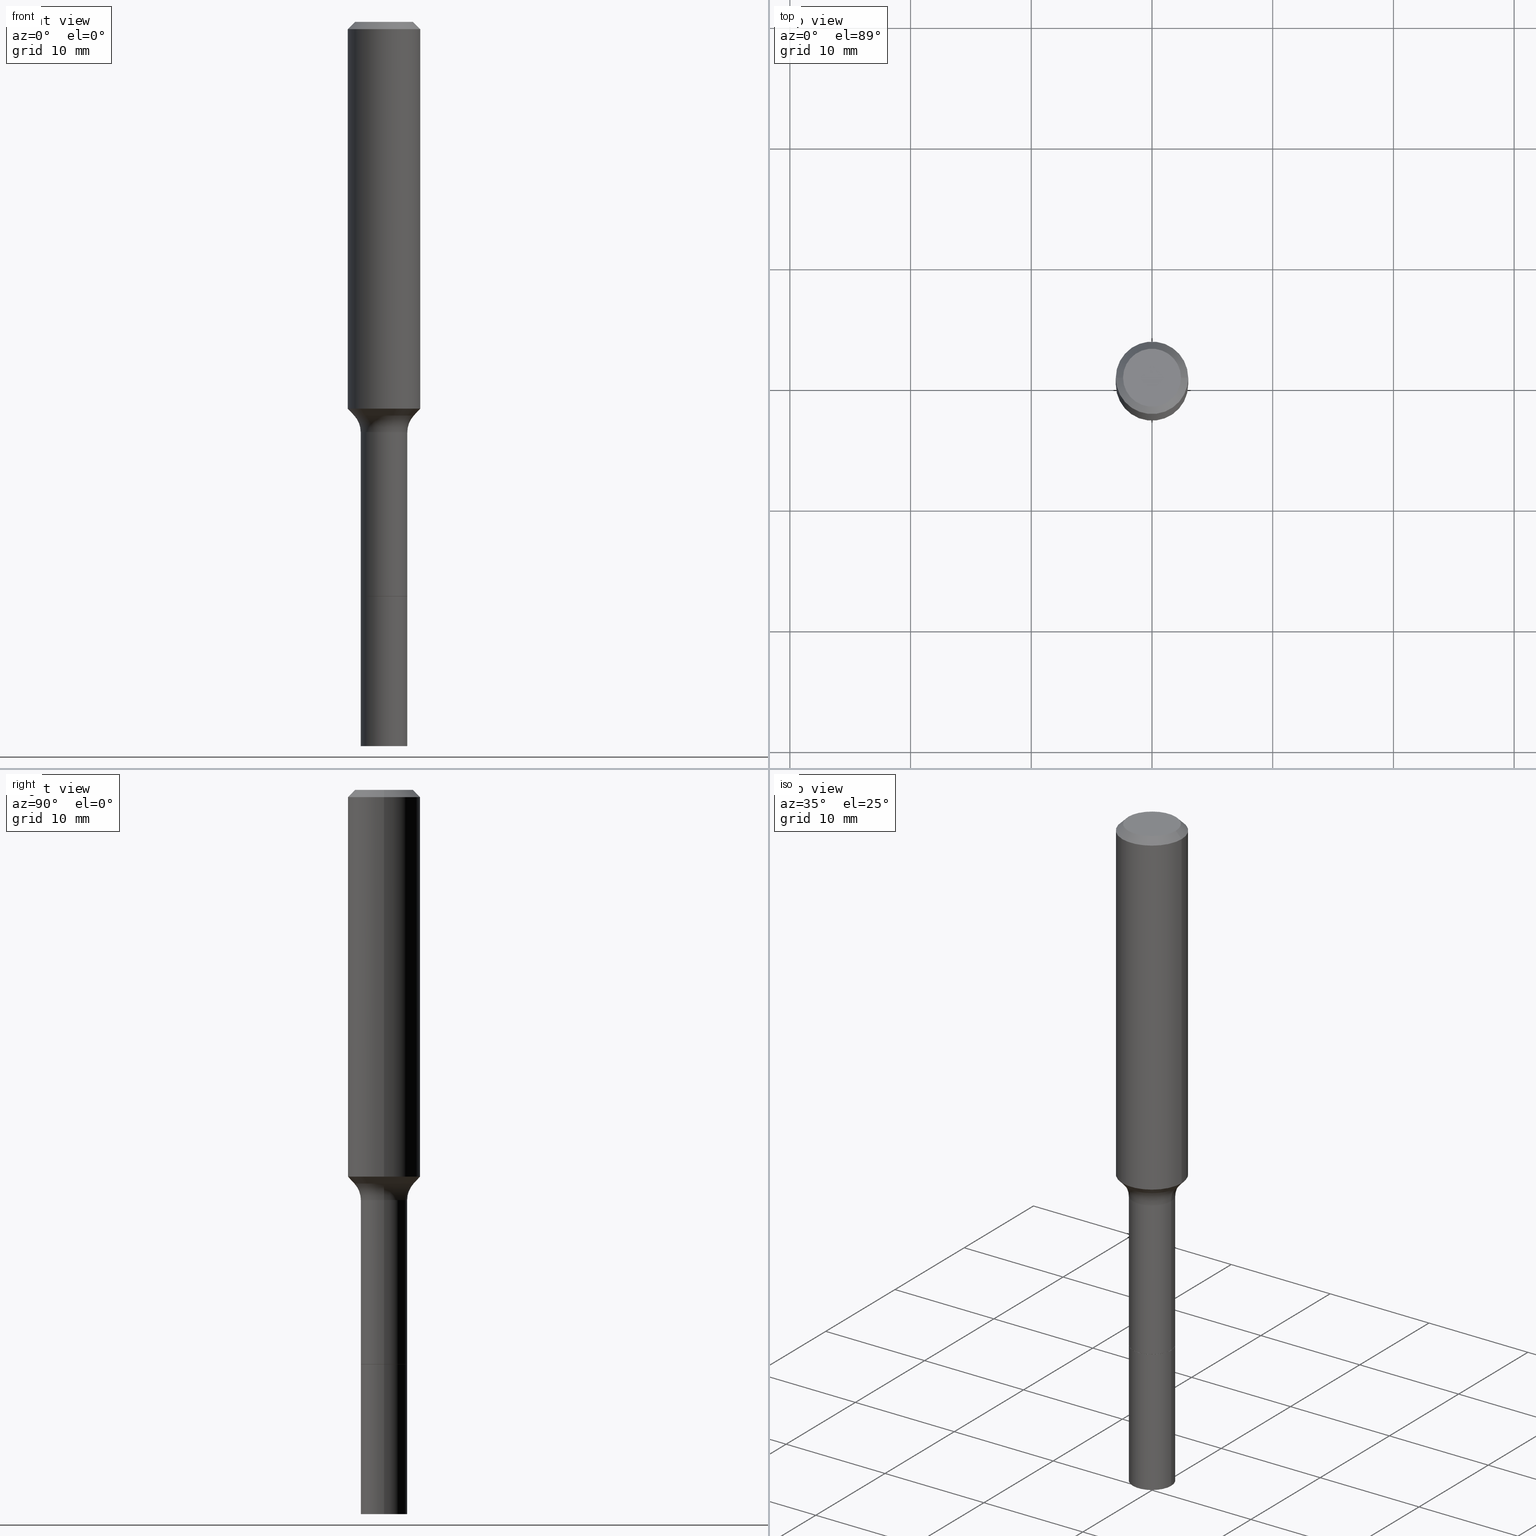
[diagram: canonical four-view strip — front | top / right | iso, engineering-drawing reading convention]
A machine part, canonical four-view strip (front | top / right | iso — engineering-drawing reading convention). The complete STEP part file that produces these views, byte-faithful:
ISO-10303-21;
HEADER;
FILE_DESCRIPTION (( 'STEP AP203' ),
    '1' );
FILE_NAME ('58806.STEP',
    '2025-04-01T15:25:00',
    ( '' ),
    ( '' ),
    'SwSTEP 2.0',
    'SolidWorks 2024',
    '' );
FILE_SCHEMA (( 'CONFIG_CONTROL_DESIGN' ));
ENDSEC;

DATA;
#1 = ADVANCED_FACE ( 'NONE', ( #71 ), #21, .T. ) ;
#2 = APPROVAL ( #70, 'UNSPECIFIED' ) ;
#3 = VERTEX_POINT ( 'NONE', #344 ) ;
#4 = AXIS2_PLACEMENT_3D ( 'NONE', #436, #317, #284 ) ;
#5 = DIRECTION ( 'NONE',  ( -2.445468806185136597E-29, 3.491481338843145583E-15, 1.000000000000000000 ) ) ;
#6 = AXIS2_PLACEMENT_3D ( 'NONE', #375, #138, #493 ) ;
#7 = EDGE_LOOP ( 'NONE', ( #22, #38, #384, #383 ) ) ;
#8 = CARTESIAN_POINT ( 'NONE',  ( 0.1180999999999999966, -8.926936027602933910E-16, -0.02362000000000014435 ) ) ;
#9 = DIRECTION ( 'NONE',  ( 1.000000000000000000, -6.982962677686267499E-15, 4.875432709231658792E-29 ) ) ;
#10 = DIRECTION ( 'NONE',  ( 0.6819983600625006970, -2.208861293262497891E-15, 0.7313537016191684614 ) ) ;
#11 = MECHANICAL_CONTEXT ( 'NONE', #82, 'mechanical' ) ;
#12 = DIRECTION ( 'NONE',  ( 1.000000000000000000, -6.982962677686267499E-15, 0.000000000000000000 ) ) ;
#13 = PERSON_AND_ORGANIZATION_ROLE ( 'design_owner' ) ;
#14 = TOROIDAL_SURFACE ( 'NONE', #440, 0.1559999999999999165, 0.07999999999999993228 ) ;
#15 = EDGE_CURVE ( 'NONE', #494, #253, #190, .T. ) ;
#16 = AXIS2_PLACEMENT_3D ( 'NONE', #495, #244, #62 ) ;
#17 = LINE ( 'NONE', #91, #300 ) ;
#18 = LINE ( 'NONE', #339, #319 ) ;
#19 = DIRECTION ( 'NONE',  ( -2.445468806185136597E-29, 3.491481338843145583E-15, 1.000000000000000000 ) ) ;
#20 = APPROVAL_ROLE ( '' ) ;
#21 = PLANE ( 'NONE',  #155 ) ;
#22 = ORIENTED_EDGE ( 'NONE', *, *, #370, .T. ) ;
#23 = CYLINDRICAL_SURFACE ( 'NONE', #104, 0.1181000000000000660 ) ;
#24 = PERSON_AND_ORGANIZATION ( #514, #501 ) ;
#25 = EDGE_LOOP ( 'NONE', ( #111, #145 ) ) ;
#26 = AXIS2_PLACEMENT_3D ( 'NONE', #296, #5, #490 ) ;
#27 = EDGE_LOOP ( 'NONE', ( #310, #109, #201, #264 ) ) ;
#28 = DIRECTION ( 'NONE',  ( -2.445468806185136597E-29, 3.491481338843145583E-15, 1.000000000000000000 ) ) ;
#29 = PERSON_AND_ORGANIZATION_ROLE ( 'design_supplier' ) ;
#30 = ORIENTED_EDGE ( 'NONE', *, *, #403, .F. ) ;
#31 = LOCAL_TIME ( 11, 25, 0.000000000000000000, #469 ) ;
#32 = EDGE_LOOP ( 'NONE', ( #402, #500, #226, #433 ) ) ;
#33 = CALENDAR_DATE ( 2025, 1, 4 ) ;
#34 = VERTEX_POINT ( 'NONE', #463 ) ;
#35 = AXIS2_PLACEMENT_3D ( 'NONE', #479, #157, #315 ) ;
#36 = DIRECTION ( 'NONE',  ( 2.445468806185136597E-29, -3.491481338843145583E-15, -1.000000000000000000 ) ) ;
#37 =( GEOMETRIC_REPRESENTATION_CONTEXT ( 3 ) GLOBAL_UNCERTAINTY_ASSIGNED_CONTEXT ( ( #146 ) ) GLOBAL_UNIT_ASSIGNED_CONTEXT ( ( #212, #372, #207 ) ) REPRESENTATION_CONTEXT ( 'NONE', 'WORKASPACE' ) );
#38 = ORIENTED_EDGE ( 'NONE', *, *, #455, .T. ) ;
#39 = FACE_OUTER_BOUND ( 'NONE', #337, .T. ) ;
#40 = CYLINDRICAL_SURFACE ( 'NONE', #60, 0.07600000000000006750 ) ;
#41 = AXIS2_PLACEMENT_3D ( 'NONE', #280, #83, #196 ) ;
#42 = CARTESIAN_POINT ( 'NONE',  ( -0.07600000000000016465, -6.855643292759872188E-15, -2.362200000000000077 ) ) ;
#43 = APPROVAL_PERSON_ORGANIZATION ( #24, #256, #110 ) ;
#44 = DESIGN_CONTEXT ( 'detailed design', #287, 'design' ) ;
#45 = CYLINDRICAL_SURFACE ( 'NONE', #101, 0.1181000000000000660 ) ;
#46 = CC_DESIGN_DATE_AND_TIME_ASSIGNMENT ( #219, #228, ( #250 ) ) ;
#47 = DIRECTION ( 'NONE',  ( -2.438088387897960049E-29, 3.491481338843145188E-15, 1.000000000000000000 ) ) ;
#48 = VERTEX_POINT ( 'NONE', #231 ) ;
#49 = AXIS2_PLACEMENT_3D ( 'NONE', #363, #85, #477 ) ;
#50 = DIRECTION ( 'NONE',  ( -2.445468806185136597E-29, 3.491481338843145583E-15, 1.000000000000000000 ) ) ;
#51 = LOCAL_TIME ( 11, 25, 0.000000000000000000, #491 ) ;
#52 = ORIENTED_EDGE ( 'NONE', *, *, #295, .T. ) ;
#53 = CARTESIAN_POINT ( 'NONE',  ( 0.000000000000000000, 0.000000000000000000, 0.000000000000000000 ) ) ;
#54 = EDGE_LOOP ( 'NONE', ( #312, #461 ) ) ;
#55 = EDGE_CURVE ( 'NONE', #181, #220, #476, .T. ) ;
#56 = DIRECTION ( 'NONE',  ( 1.000000000000000000, -6.982962677686267499E-15, 0.000000000000000000 ) ) ;
#57 = LINE ( 'NONE', #453, #158 ) ;
#58 = DIRECTION ( 'NONE',  ( 1.000000000000000000, -6.982962677686261189E-15, 0.000000000000000000 ) ) ;
#59 = DIRECTION ( 'NONE',  ( -2.445468806185136597E-29, 3.491481338843145583E-15, 1.000000000000000000 ) ) ;
#60 = AXIS2_PLACEMENT_3D ( 'NONE', #513, #360, #156 ) ;
#61 = AXIS2_PLACEMENT_3D ( 'NONE', #211, #288, #374 ) ;
#62 = DIRECTION ( 'NONE',  ( 1.000000000000000000, -6.982962677686266711E-15, 0.000000000000000000 ) ) ;
#63 = EDGE_CURVE ( 'NONE', #253, #229, #447, .T. ) ;
#64 = DIRECTION ( 'NONE',  ( -2.445468806185136597E-29, 3.491481338843145583E-15, 1.000000000000000000 ) ) ;
#65 = ADVANCED_FACE ( 'NONE', ( #39 ), #40, .T. ) ;
#66 = ORIENTED_EDGE ( 'NONE', *, *, #322, .F. ) ;
#67 = ORIENTED_EDGE ( 'NONE', *, *, #430, .F. ) ;
#68 = DIRECTION ( 'NONE',  ( 1.000000000000000000, -6.982962677686266711E-15, 0.000000000000000000 ) ) ;
#69 = AXIS2_PLACEMENT_3D ( 'NONE', #80, #321, #120 ) ;
#70 = APPROVAL_STATUS ( 'not_yet_approved' ) ;
#71 = FACE_OUTER_BOUND ( 'NONE', #340, .T. ) ;
#72 = CC_DESIGN_SECURITY_CLASSIFICATION ( #250, ( #349 ) ) ;
#73 = ORIENTED_EDGE ( 'NONE', *, *, #420, .F. ) ;
#74 = CIRCLE ( 'NONE', #141, 0.1181000000000001493 ) ;
#75 = CARTESIAN_POINT ( 'NONE',  ( 5.776686413970529753E-29, -8.247577218615279626E-15, -2.362200000000000077 ) ) ;
#76 = EDGE_LOOP ( 'NONE', ( #132, #423, #432, #106 ) ) ;
#77 = AXIS2_PLACEMENT_3D ( 'NONE', #204, #50, #410 ) ;
#78 = FACE_OUTER_BOUND ( 'NONE', #307, .T. ) ;
#79 = VECTOR ( 'NONE', #105, 39.37007874015748143 ) ;
#80 = CARTESIAN_POINT ( 'NONE',  ( 5.776197320209328408E-31, -8.246878922347560526E-17, -0.02362000000000014435 ) ) ;
#81 = ORIENTED_EDGE ( 'NONE', *, *, #86, .T. ) ;
#82 = APPLICATION_CONTEXT ( 'configuration controlled 3d designs of mechanical parts and assemblies' ) ;
#83 = DIRECTION ( 'NONE',  ( -2.445468806185136597E-29, 3.491481338843145583E-15, 1.000000000000000000 ) ) ;
#84 = AXIS2_PLACEMENT_3D ( 'NONE', #415, #445, #56 ) ;
#85 = DIRECTION ( 'NONE',  ( -6.982962677686266711E-15, -1.000000000000000000, 3.491481338843145583E-15 ) ) ;
#86 = EDGE_CURVE ( 'NONE', #48, #253, #195, .T. ) ;
#87 = LINE ( 'NONE', #8, #411 ) ;
#88 = VERTEX_POINT ( 'NONE', #357 ) ;
#89 = CARTESIAN_POINT ( 'NONE',  ( -0.07549999999999999767, -6.007274559760947001E-15, -1.874199999999999866 ) ) ;
#90 = VECTOR ( 'NONE', #254, 39.37007874015748143 ) ;
#91 = CARTESIAN_POINT ( 'NONE',  ( 0.09749170387046635078, -5.162586493369018225E-15, -1.283640131195000089 ) ) ;
#92 = APPROVAL_STATUS ( 'not_yet_approved' ) ;
#93 = CIRCLE ( 'NONE', #262, 0.07549999999999999767 ) ;
#94 = EDGE_CURVE ( 'NONE', #168, #34, #121, .T. ) ;
#95 = CARTESIAN_POINT ( 'NONE',  ( -0.1180999999999999966, -1.404405874613040682E-15, -0.02362000000000014435 ) ) ;
#96 = DIRECTION ( 'NONE',  ( -0.6819983600625006970, 7.399397606724296042E-15, 0.7313537016191684614 ) ) ;
#97 = FACE_OUTER_BOUND ( 'NONE', #400, .T. ) ;
#98 = APPROVAL_DATE_TIME ( #179, #486 ) ;
#99 = ADVANCED_FACE ( 'NONE', ( #153 ), #148, .T. ) ;
#100 = LINE ( 'NONE', #465, #326 ) ;
#101 = AXIS2_PLACEMENT_3D ( 'NONE', #199, #160, #412 ) ;
#102 = VERTEX_POINT ( 'NONE', #515 ) ;
#103 = MANIFOLD_SOLID_BREP ( 'Body-Move/Copy2[2]', #333 ) ;
#104 = AXIS2_PLACEMENT_3D ( 'NONE', #142, #19, #424 ) ;
#105 = DIRECTION ( 'NONE',  ( -2.445468806185136877E-29, 3.491481338843145188E-15, 1.000000000000000000 ) ) ;
#106 = ORIENTED_EDGE ( 'NONE', *, *, #446, .F. ) ;
#107 = ORIENTED_EDGE ( 'NONE', *, *, #63, .T. ) ;
#108 = CARTESIAN_POINT ( 'NONE',  ( 3.085057791948405945E-29, -4.404644901867963878E-15, -1.261540439258765467 ) ) ;
#109 = ORIENTED_EDGE ( 'NONE', *, *, #370, .F. ) ;
#110 = APPROVAL_ROLE ( '' ) ;
#111 = ORIENTED_EDGE ( 'NONE', *, *, #283, .T. ) ;
#112 = CIRCLE ( 'NONE', #49, 0.07999999999999993228 ) ;
#113 = PRODUCT_DEFINITION ( 'UNKNOWN', '', #349, #44 ) ;
#114 = ORIENTED_EDGE ( 'NONE', *, *, #435, .T. ) ;
#115 = ORIENTED_EDGE ( 'NONE', *, *, #302, .F. ) ;
#116 = PERSON_AND_ORGANIZATION ( #514, #501 ) ;
#117 = DIRECTION ( 'NONE',  ( 1.000000000000000000, -6.982962677686266711E-15, 0.000000000000000000 ) ) ;
#118 = FACE_OUTER_BOUND ( 'NONE', #27, .T. ) ;
#119 = APPROVAL_PERSON_ORGANIZATION ( #356, #2, #225 ) ;
#120 = DIRECTION ( 'NONE',  ( 1.000000000000000000, -6.982962677686266711E-15, 0.000000000000000000 ) ) ;
#121 = LINE ( 'NONE', #438, #275 ) ;
#122 = CIRCLE ( 'NONE', #192, 0.07599999999999994260 ) ;
#123 = CYLINDRICAL_SURFACE ( 'NONE', #35, 0.07599999999999997036 ) ;
#124 = CIRCLE ( 'NONE', #443, 0.09447999999999998066 ) ;
#125 = DIRECTION ( 'NONE',  ( 1.000000000000000000, -6.982962677686267499E-15, 0.000000000000000000 ) ) ;
#126 = CARTESIAN_POINT ( 'NONE',  ( 3.272526356436949336E-29, -4.672300327639896745E-15, -1.338200000000000056 ) ) ;
#127 = DIRECTION ( 'NONE',  ( 7.105427357601001859E-15, 1.000000000000000000, -3.491481338843145583E-15 ) ) ;
#128 = DIRECTION ( 'NONE',  ( 1.000000000000000000, 0.000000000000000000, 0.000000000000000000 ) ) ;
#129 = ORIENTED_EDGE ( 'NONE', *, *, #358, .F. ) ;
#130 = FACE_OUTER_BOUND ( 'NONE', #510, .T. ) ;
#131 =( LENGTH_UNIT ( ) NAMED_UNIT ( * ) SI_UNIT ( $, .METRE. ) );
#132 = ORIENTED_EDGE ( 'NONE', *, *, #417, .T. ) ;
#133 = DIRECTION ( 'NONE',  ( -2.445468806185136597E-29, 3.491481338843145583E-15, 1.000000000000000000 ) ) ;
#134 = ADVANCED_FACE ( 'NONE', ( #240 ), #257, .T. ) ;
#135 = CARTESIAN_POINT ( 'NONE',  ( 4.583297636552182524E-29, -6.543734325259823512E-15, -1.874199999999999866 ) ) ;
#136 = EDGE_LOOP ( 'NONE', ( #391, #304, #381, #73 ) ) ;
#137 = CARTESIAN_POINT ( 'NONE',  ( 0.07600000000000015077, -8.778282382119435644E-15, -2.362200000000000077 ) ) ;
#138 = DIRECTION ( 'NONE',  ( -2.445468806185136597E-29, 3.491481338843145583E-15, 1.000000000000000000 ) ) ;
#139 = CIRCLE ( 'NONE', #84, 0.07600000000000001199 ) ;
#140 = VERTEX_POINT ( 'NONE', #405 ) ;
#141 = AXIS2_PLACEMENT_3D ( 'NONE', #108, #263, #178 ) ;
#142 = CARTESIAN_POINT ( 'NONE',  ( 0.000000000000000000, 0.000000000000000000, 0.000000000000000000 ) ) ;
#143 = EDGE_LOOP ( 'NONE', ( #154, #52, #177, #221 ) ) ;
#144 = APPROVAL_DATE_TIME ( #505, #256 ) ;
#145 = ORIENTED_EDGE ( 'NONE', *, *, #362, .T. ) ;
#146 = UNCERTAINTY_MEASURE_WITH_UNIT (LENGTH_MEASURE( 1.000000000000000082E-05 ), #212, 'distance_accuracy_value', 'NONE');
#147 = ORIENTED_EDGE ( 'NONE', *, *, #484, .T. ) ;
#148 = CONICAL_SURFACE ( 'NONE', #41, 0.07549999999999999767, 0.7853981633975507526 ) ;
#149 = CC_DESIGN_APPROVAL ( #256, ( #250 ) ) ;
#150 = CIRCLE ( 'NONE', #164, 0.09447999999999998066 ) ;
#151 = ORIENTED_EDGE ( 'NONE', *, *, #328, .F. ) ;
#152 = ADVANCED_FACE ( 'NONE', ( #236 ), #123, .T. ) ;
#153 = FACE_OUTER_BOUND ( 'NONE', #143, .T. ) ;
#154 = ORIENTED_EDGE ( 'NONE', *, *, #392, .T. ) ;
#155 = AXIS2_PLACEMENT_3D ( 'NONE', #75, #498, #504 ) ;
#156 = DIRECTION ( 'NONE',  ( 1.000000000000000000, -6.982962677686262766E-15, 0.000000000000000000 ) ) ;
#157 = DIRECTION ( 'NONE',  ( -2.445468806185136597E-29, 3.491481338843145583E-15, 1.000000000000000000 ) ) ;
#158 = VECTOR ( 'NONE', #330, 39.37007874015748143 ) ;
#159 = DIRECTION ( 'NONE',  ( -2.445468806185136597E-29, 3.491481338843145583E-15, 1.000000000000000000 ) ) ;
#160 = DIRECTION ( 'NONE',  ( -2.445468806185136597E-29, 3.491481338843145583E-15, 1.000000000000000000 ) ) ;
#161 = AXIS2_PLACEMENT_3D ( 'NONE', #512, #281, #117 ) ;
#162 = ORIENTED_EDGE ( 'NONE', *, *, #403, .T. ) ;
#163 = CARTESIAN_POINT ( 'NONE',  ( 0.07600000000000001199, -7.074439488763979530E-15, -1.874199999999999866 ) ) ;
#164 = AXIS2_PLACEMENT_3D ( 'NONE', #496, #64, #427 ) ;
#165 = VERTEX_POINT ( 'NONE', #320 ) ;
#166 = DIRECTION ( 'NONE',  ( 0.7071067811865460184, -7.319954787623251312E-15, -0.7071067811865490160 ) ) ;
#167 = CC_DESIGN_DATE_AND_TIME_ASSIGNMENT ( #210, #350, ( #113 ) ) ;
#168 = VERTEX_POINT ( 'NONE', #42 ) ;
#169 = DIRECTION ( 'NONE',  ( -2.445468806185136597E-29, 3.491481338843145583E-15, 1.000000000000000000 ) ) ;
#170 = PERSON_AND_ORGANIZATION ( #514, #501 ) ;
#171 = VERTEX_POINT ( 'NONE', #274 ) ;
#172 = AXIS2_PLACEMENT_3D ( 'NONE', #206, #407, #485 ) ;
#173 = DIRECTION ( 'NONE',  ( -2.445468806185136597E-29, 3.491481338843145583E-15, 1.000000000000000000 ) ) ;
#174 = CC_DESIGN_PERSON_AND_ORGANIZATION_ASSIGNMENT ( #233, #187, ( #250 ) ) ;
#175 = CARTESIAN_POINT ( 'NONE',  ( 4.583297636552182524E-29, -6.543734325259823512E-15, -1.874199999999999866 ) ) ;
#176 = CARTESIAN_POINT ( 'NONE',  ( 3.139101899204769565E-29, -4.481805563857510262E-15, -1.283640131195000089 ) ) ;
#177 = ORIENTED_EDGE ( 'NONE', *, *, #508, .F. ) ;
#178 = DIRECTION ( 'NONE',  ( 1.000000000000000000, -6.982962677686264344E-15, 0.000000000000000000 ) ) ;
#179 = DATE_AND_TIME ( #248, #305 ) ;
#180 = VERTEX_POINT ( 'NONE', #401 ) ;
#181 = VERTEX_POINT ( 'NONE', #444 ) ;
#182 = VECTOR ( 'NONE', #303, 39.37007874015748143 ) ;
#183 = ADVANCED_FACE ( 'NONE', ( #482 ), #282, .T. ) ;
#184 = PLANE ( 'NONE',  #243 ) ;
#185 = ORIENTED_EDGE ( 'NONE', *, *, #94, .F. ) ;
#186 = CC_DESIGN_APPROVAL ( #2, ( #349 ) ) ;
#187 = PERSON_AND_ORGANIZATION_ROLE ( 'classification_officer' ) ;
#188 = ORIENTED_EDGE ( 'NONE', *, *, #15, .F. ) ;
#189 = ADVANCED_FACE ( 'NONE', ( #278 ), #323, .F. ) ;
#190 = LINE ( 'NONE', #352, #182 ) ;
#191 = CARTESIAN_POINT ( 'NONE',  ( 4.582074902149090284E-29, -6.541988584590402009E-15, -1.873699999999999921 ) ) ;
#192 = AXIS2_PLACEMENT_3D ( 'NONE', #200, #365, #58 ) ;
#193 = CIRCLE ( 'NONE', #516, 0.07600000000000001199 ) ;
#194 = LINE ( 'NONE', #361, #460 ) ;
#195 = LINE ( 'NONE', #439, #394 ) ;
#196 = DIRECTION ( 'NONE',  ( 1.000000000000000000, -6.982962677686262766E-15, 0.000000000000000000 ) ) ;
#197 = CARTESIAN_POINT ( 'NONE',  ( 5.776197320209328408E-31, -8.246878922347560526E-17, -0.02362000000000014435 ) ) ;
#198 = ADVANCED_FACE ( 'NONE', ( #78 ), #311, .T. ) ;
#199 = CARTESIAN_POINT ( 'NONE',  ( 0.000000000000000000, 0.000000000000000000, 0.000000000000000000 ) ) ;
#200 = CARTESIAN_POINT ( 'NONE',  ( 3.272526356436949336E-29, -4.672300327639896745E-15, -1.338200000000000056 ) ) ;
#201 = ORIENTED_EDGE ( 'NONE', *, *, #208, .T. ) ;
#202 = EDGE_CURVE ( 'NONE', #181, #425, #194, .T. ) ;
#203 = ORIENTED_EDGE ( 'NONE', *, *, #446, .T. ) ;
#204 = CARTESIAN_POINT ( 'NONE',  ( 4.583297636552182524E-29, -6.543734325259823512E-15, -1.874199999999999866 ) ) ;
#205 = AXIS2_PLACEMENT_3D ( 'NONE', #299, #379, #128 ) ;
#206 = CARTESIAN_POINT ( 'NONE',  ( 4.583297636552182524E-29, -6.543734325259823512E-15, -1.874199999999999866 ) ) ;
#207 =( NAMED_UNIT ( * ) SI_UNIT ( $, .STERADIAN. ) SOLID_ANGLE_UNIT ( ) );
#208 = EDGE_CURVE ( 'NONE', #165, #88, #112, .T. ) ;
#209 = CARTESIAN_POINT ( 'NONE',  ( 5.776686413970529753E-29, -8.247577218615279626E-15, -2.362200000000000077 ) ) ;
#210 = DATE_AND_TIME ( #255, #51 ) ;
#211 = CARTESIAN_POINT ( 'NONE',  ( 3.085057791948405945E-29, -4.404644901867963878E-15, -1.261540439258765467 ) ) ;
#212 =( CONVERSION_BASED_UNIT ( 'INCH', #216 ) LENGTH_UNIT ( ) NAMED_UNIT ( #308 ) );
#213 = PRODUCT_RELATED_PRODUCT_CATEGORY ( 'detail', '', ( #466 ) ) ;
#214 = AXIS2_PLACEMENT_3D ( 'NONE', #176, #497, #369 ) ;
#215 = LINE ( 'NONE', #346, #79 ) ;
#216 = LENGTH_MEASURE_WITH_UNIT ( LENGTH_MEASURE( 0.02539999999999999897 ), #131 );
#217 = ORIENTED_EDGE ( 'NONE', *, *, #480, .T. ) ;
#218 = CARTESIAN_POINT ( 'NONE',  ( 5.776197320209328408E-31, -8.246878922347560526E-17, -0.02362000000000014435 ) ) ;
#219 = DATE_AND_TIME ( #395, #31 ) ;
#220 = VERTEX_POINT ( 'NONE', #396 ) ;
#221 = ORIENTED_EDGE ( 'NONE', *, *, #480, .F. ) ;
#222 = ADVANCED_FACE ( 'NONE', ( #118 ), #353, .F. ) ;
#223 = DIRECTION ( 'NONE',  ( 1.000000000000000000, -6.982962677686261189E-15, 0.000000000000000000 ) ) ;
#224 = ADVANCED_FACE ( 'NONE', ( #406 ), #45, .T. ) ;
#225 = APPROVAL_ROLE ( '' ) ;
#226 = ORIENTED_EDGE ( 'NONE', *, *, #385, .T. ) ;
#227 = AXIS2_PLACEMENT_3D ( 'NONE', #378, #301, #458 ) ;
#228 = DATE_TIME_ROLE ( 'classification_date' ) ;
#229 = VERTEX_POINT ( 'NONE', #247 ) ;
#230 = PRODUCT_DEFINITION_SHAPE ( 'NONE', 'NONE',  #113 ) ;
#231 = CARTESIAN_POINT ( 'NONE',  ( -0.09447999999999998066, 7.009847083995354710E-16, -3.085620075132147757E-17 ) ) ;
#232 = CC_DESIGN_PERSON_AND_ORGANIZATION_ASSIGNMENT ( #489, #13, ( #466 ) ) ;
#233 = PERSON_AND_ORGANIZATION ( #514, #501 ) ;
#234 = DIRECTION ( 'NONE',  ( 2.438088387897960049E-29, -3.491481338843145188E-15, -1.000000000000000000 ) ) ;
#235 = CONICAL_SURFACE ( 'NONE', #26, 0.09749170387046635078, 0.7504915783575647481 ) ;
#236 = FACE_OUTER_BOUND ( 'NONE', #136, .T. ) ;
#237 = ORIENTED_EDGE ( 'NONE', *, *, #86, .F. ) ;
#238 = ADVANCED_FACE ( 'NONE', ( #452 ), #367, .F. ) ;
#239 = ADVANCED_FACE ( 'NONE', ( #97 ), #371, .T. ) ;
#240 = FACE_OUTER_BOUND ( 'NONE', #467, .T. ) ;
#241 = AXIS2_PLACEMENT_3D ( 'NONE', #329, #173, #125 ) ;
#242 = DIRECTION ( 'NONE',  ( -2.445468806185136877E-29, 3.491481338843145188E-15, 1.000000000000000000 ) ) ;
#243 = AXIS2_PLACEMENT_3D ( 'NONE', #422, #462, #265 ) ;
#244 = DIRECTION ( 'NONE',  ( -2.445468806185136597E-29, 3.491481338843145583E-15, 1.000000000000000000 ) ) ;
#245 = EDGE_CURVE ( 'NONE', #88, #425, #122, .T. ) ;
#246 = LINE ( 'NONE', #89, #90 ) ;
#247 = CARTESIAN_POINT ( 'NONE',  ( 0.1180999999999999966, -9.071566814582237199E-16, -0.02362000000000014435 ) ) ;
#248 = CALENDAR_DATE ( 2025, 1, 4 ) ;
#249 = ORIENTED_EDGE ( 'NONE', *, *, #271, .T. ) ;
#250 = SECURITY_CLASSIFICATION ( '', '', #269 ) ;
#251 = DIRECTION ( 'NONE',  ( -1.000000000000000000, 7.105427357601005014E-15, 0.000000000000000000 ) ) ;
#252 = CARTESIAN_POINT ( 'NONE',  ( -0.1181000000000001493, -3.565493930935284892E-15, -1.261540439258765467 ) ) ;
#253 = VERTEX_POINT ( 'NONE', #95 ) ;
#254 = DIRECTION ( 'NONE',  ( -0.7071067811866199593, 7.493145998870616062E-15, 0.7071067811864750752 ) ) ;
#255 = CALENDAR_DATE ( 2025, 1, 4 ) ;
#256 = APPROVAL ( #473, 'UNSPECIFIED' ) ;
#257 = CONICAL_SURFACE ( 'NONE', #161, 0.09749170387046635078, 0.7504915783575647481 ) ;
#258 = FACE_OUTER_BOUND ( 'NONE', #54, .T. ) ;
#259 = DIRECTION ( 'NONE',  ( -2.445468806185136597E-29, 3.491481338843145583E-15, 1.000000000000000000 ) ) ;
#260 = ADVANCED_FACE ( 'NONE', ( #292 ), #235, .T. ) ;
#261 = ORIENTED_EDGE ( 'NONE', *, *, #468, .F. ) ;
#262 = AXIS2_PLACEMENT_3D ( 'NONE', #135, #59, #297 ) ;
#263 = DIRECTION ( 'NONE',  ( -2.445468806185136597E-29, 3.491481338843145583E-15, 1.000000000000000000 ) ) ;
#264 = ORIENTED_EDGE ( 'NONE', *, *, #245, .T. ) ;
#265 = DIRECTION ( 'NONE',  ( -1.000000000000000000, 6.982962677686265922E-15, -4.876176775795935793E-29 ) ) ;
#266 = CALENDAR_DATE ( 2025, 1, 4 ) ;
#267 = EDGE_LOOP ( 'NONE', ( #276, #147, #217, #314 ) ) ;
#268 = CIRCLE ( 'NONE', #241, 0.07600000000000015077 ) ;
#269 = SECURITY_CLASSIFICATION_LEVEL ( 'unclassified' ) ;
#270 = ORIENTED_EDGE ( 'NONE', *, *, #55, .T. ) ;
#271 = EDGE_CURVE ( 'NONE', #165, #140, #17, .T. ) ;
#272 = ORIENTED_EDGE ( 'NONE', *, *, #392, .F. ) ;
#273 = VERTEX_POINT ( 'NONE', #163 ) ;
#274 = CARTESIAN_POINT ( 'NONE',  ( 0.07549999999999999767, -7.070948007425136523E-15, -1.874199999999999866 ) ) ;
#275 = VECTOR ( 'NONE', #475, 39.37007874015748143 ) ;
#276 = ORIENTED_EDGE ( 'NONE', *, *, #295, .F. ) ;
#277 = CC_DESIGN_APPROVAL ( #486, ( #113 ) ) ;
#278 = FACE_OUTER_BOUND ( 'NONE', #25, .T. ) ;
#279 = EDGE_CURVE ( 'NONE', #102, #425, #366, .T. ) ;
#280 = CARTESIAN_POINT ( 'NONE',  ( 4.583297636552182524E-29, -6.543734325259823512E-15, -1.874199999999999866 ) ) ;
#281 = DIRECTION ( 'NONE',  ( -2.445468806185136597E-29, 3.491481338843145583E-15, 1.000000000000000000 ) ) ;
#282 = CONICAL_SURFACE ( 'NONE', #4, 0.1180999999999999966, 0.7853981633974461696 ) ;
#283 = EDGE_CURVE ( 'NONE', #273, #34, #139, .T. ) ;
#284 = DIRECTION ( 'NONE',  ( -1.000000000000000000, 6.982962677686266711E-15, 0.000000000000000000 ) ) ;
#285 = CIRCLE ( 'NONE', #16, 0.09749170387046635078 ) ;
#286 = ORIENTED_EDGE ( 'NONE', *, *, #283, .F. ) ;
#287 = APPLICATION_CONTEXT ( 'configuration controlled 3d designs of mechanical parts and assemblies' ) ;
#288 = DIRECTION ( 'NONE',  ( -2.445468806185136597E-29, 3.491481338843145583E-15, 1.000000000000000000 ) ) ;
#289 = FACE_OUTER_BOUND ( 'NONE', #267, .T. ) ;
#290 = DIRECTION ( 'NONE',  ( -2.445468806185136877E-29, 3.491481338843145188E-15, 1.000000000000000000 ) ) ;
#291 = ADVANCED_FACE ( 'NONE', ( #289 ), #373, .T. ) ;
#292 = FACE_OUTER_BOUND ( 'NONE', #7, .T. ) ;
#293 = LINE ( 'NONE', #419, #437 ) ;
#294 = AXIS2_PLACEMENT_3D ( 'NONE', #382, #28, #223 ) ;
#295 = EDGE_CURVE ( 'NONE', #3, #181, #246, .T. ) ;
#296 = CARTESIAN_POINT ( 'NONE',  ( 3.139101899204769565E-29, -4.481805563857510262E-15, -1.283640131195000089 ) ) ;
#297 = DIRECTION ( 'NONE',  ( 1.000000000000000000, -6.982962677686262766E-15, 0.000000000000000000 ) ) ;
#298 = DIRECTION ( 'NONE',  ( -2.445468806185136597E-29, 3.491481338843145583E-15, 1.000000000000000000 ) ) ;
#299 = CARTESIAN_POINT ( 'NONE',  ( 0.000000000000000000, 0.000000000000000000, 0.000000000000000000 ) ) ;
#300 = VECTOR ( 'NONE', #10, 39.37007874015748143 ) ;
#301 = DIRECTION ( 'NONE',  ( -2.445468806185136597E-29, 3.491481338843145583E-15, 1.000000000000000000 ) ) ;
#302 = EDGE_CURVE ( 'NONE', #180, #229, #87, .T. ) ;
#303 = DIRECTION ( 'NONE',  ( -2.445468806185136877E-29, 3.491481338843145188E-15, 1.000000000000000000 ) ) ;
#304 = ORIENTED_EDGE ( 'NONE', *, *, #202, .T. ) ;
#305 = LOCAL_TIME ( 11, 25, 0.000000000000000000, #450 ) ;
#306 = DIRECTION ( 'NONE',  ( -2.445468806185136597E-29, 3.491481338843145583E-15, 1.000000000000000000 ) ) ;
#307 = EDGE_LOOP ( 'NONE', ( #261, #457, #114, #237 ) ) ;
#308 = DIMENSIONAL_EXPONENTS ( 1.000000000000000000, 0.000000000000000000, 0.000000000000000000, 0.000000000000000000, 0.000000000000000000, 0.000000000000000000, 0.000000000000000000 ) ;
#309 = COORDINATED_UNIVERSAL_TIME_OFFSET ( 5, 0, .BEHIND. ) ;
#310 = ORIENTED_EDGE ( 'NONE', *, *, #279, .F. ) ;
#311 = CONICAL_SURFACE ( 'NONE', #335, 0.1180999999999999966, 0.7853981633974461696 ) ;
#312 = ORIENTED_EDGE ( 'NONE', *, *, #430, .T. ) ;
#313 = AXIS2_PLACEMENT_3D ( 'NONE', #53, #133, #418 ) ;
#314 = ORIENTED_EDGE ( 'NONE', *, *, #55, .F. ) ;
#315 = DIRECTION ( 'NONE',  ( 1.000000000000000000, -6.982962677686267499E-15, 4.876176775795935793E-29 ) ) ;
#316 = AXIS2_PLACEMENT_3D ( 'NONE', #191, #506, #354 ) ;
#317 = DIRECTION ( 'NONE',  ( 2.445468806185136597E-29, -3.491481338843145583E-15, -1.000000000000000000 ) ) ;
#318 = CIRCLE ( 'NONE', #471, 0.07600000000000015077 ) ;
#319 = VECTOR ( 'NONE', #290, 39.37007874015748143 ) ;
#320 = CARTESIAN_POINT ( 'NONE',  ( 0.09749170387046635078, -5.162586493369017436E-15, -1.283640131195000089 ) ) ;
#321 = DIRECTION ( 'NONE',  ( -2.445468806185136597E-29, 3.491481338843145583E-15, 1.000000000000000000 ) ) ;
#322 = EDGE_CURVE ( 'NONE', #434, #168, #318, .T. ) ;
#323 = PLANE ( 'NONE',  #507 ) ;
#324 = EDGE_LOOP ( 'NONE', ( #188, #388, #203, #393 ) ) ;
#325 = CARTESIAN_POINT ( 'NONE',  ( -0.1559999999999999165, -3.563853659854141048E-15, -1.338200000000000056 ) ) ;
#326 = VECTOR ( 'NONE', #499, 39.37007874015748143 ) ;
#327 = ORIENTED_EDGE ( 'NONE', *, *, #202, .F. ) ;
#328 = EDGE_CURVE ( 'NONE', #168, #434, #268, .T. ) ;
#329 = CARTESIAN_POINT ( 'NONE',  ( 5.776686413970529753E-29, -8.247577218615279626E-15, -2.362200000000000077 ) ) ;
#330 = DIRECTION ( 'NONE',  ( 0.7071067811866199593, -2.468850131083015945E-15, 0.7071067811864750752 ) ) ;
#331 = DIRECTION ( 'NONE',  ( 1.000000000000000000, -6.982962677686265922E-15, 4.876176775795935793E-29 ) ) ;
#332 = PERSON_AND_ORGANIZATION_ROLE ( 'creator' ) ;
#333 = CLOSED_SHELL ( 'NONE', ( #99, #198, #429, #260, #336, #152, #342, #222, #134, #224, #183, #426, #238, #291 ) ) ;
#334 = EDGE_LOOP ( 'NONE', ( #115, #67, #81, #107 ) ) ;
#335 = AXIS2_PLACEMENT_3D ( 'NONE', #197, #36, #399 ) ;
#336 = ADVANCED_FACE ( 'NONE', ( #488 ), #14, .F. ) ;
#337 = EDGE_LOOP ( 'NONE', ( #409, #364, #286, #30 ) ) ;
#338 = DIRECTION ( 'NONE',  ( 1.000000000000000000, -6.982962677686267499E-15, 0.000000000000000000 ) ) ;
#339 = CARTESIAN_POINT ( 'NONE',  ( 0.1181000000000000660, -8.246878922347485584E-16, 5.758764772215003944E-30 ) ) ;
#340 = EDGE_LOOP ( 'NONE', ( #66, #151 ) ) ;
#341 = FACE_OUTER_BOUND ( 'NONE', #76, .T. ) ;
#342 = ADVANCED_FACE ( 'NONE', ( #130 ), #456, .T. ) ;
#343 = CARTESIAN_POINT ( 'NONE',  ( 7.545787641473140628E-46, -1.077338491108201769E-31, -3.085620075131671975E-17 ) ) ;
#344 = CARTESIAN_POINT ( 'NONE',  ( -0.07549999999999999767, -6.004625332586837378E-15, -1.874199999999999866 ) ) ;
#345 = AXIS2_PLACEMENT_3D ( 'NONE', #325, #127, #251 ) ;
#346 = CARTESIAN_POINT ( 'NONE',  ( 0.07599999999999997036, -5.307051635041561162E-16, 3.705894349604909549E-30 ) ) ;
#347 = EDGE_LOOP ( 'NONE', ( #272, #380 ) ) ;
#348 = LOCAL_TIME ( 11, 25, 0.000000000000000000, #390 ) ;
#349 = PRODUCT_DEFINITION_FORMATION_WITH_SPECIFIED_SOURCE ( 'ANY', '', #466, .NOT_KNOWN. ) ;
#350 = DATE_TIME_ROLE ( 'creation_date' ) ;
#351 = ORIENTED_EDGE ( 'NONE', *, *, #420, .T. ) ;
#352 = CARTESIAN_POINT ( 'NONE',  ( -0.1181000000000000660, 8.391509709326787887E-16, -5.809262341591047287E-30 ) ) ;
#353 = TOROIDAL_SURFACE ( 'NONE', #421, 0.1559999999999999165, 0.07999999999999993228 ) ;
#354 = DIRECTION ( 'NONE',  ( 1.000000000000000000, -6.982962677686267499E-15, 0.000000000000000000 ) ) ;
#355 = AXIS2_PLACEMENT_3D ( 'NONE', #218, #306, #68 ) ;
#356 = PERSON_AND_ORGANIZATION ( #514, #501 ) ;
#357 = CARTESIAN_POINT ( 'NONE',  ( 0.07599999999999994260, -5.203005491144051974E-15, -1.338200000000000056 ) ) ;
#358 = EDGE_CURVE ( 'NONE', #494, #140, #376, .T. ) ;
#359 = DIRECTION ( 'NONE',  ( -0.7071067811865460184, 2.468850131082241283E-15, -0.7071067811865490160 ) ) ;
#360 = DIRECTION ( 'NONE',  ( -2.445468806185136597E-29, 3.491481338843145583E-15, 1.000000000000000000 ) ) ;
#361 = CARTESIAN_POINT ( 'NONE',  ( -0.07599999999999997036, 5.400124791776759306E-16, -3.738390668593726595E-30 ) ) ;
#362 = EDGE_CURVE ( 'NONE', #34, #273, #193, .T. ) ;
#363 = CARTESIAN_POINT ( 'NONE',  ( 0.1559999999999999165, -5.761642505358954415E-15, -1.338200000000000056 ) ) ;
#364 = ORIENTED_EDGE ( 'NONE', *, *, #94, .T. ) ;
#365 = DIRECTION ( 'NONE',  ( -2.445468806185136597E-29, 3.491481338843145583E-15, 1.000000000000000000 ) ) ;
#366 = CIRCLE ( 'NONE', #345, 0.07999999999999993228 ) ;
#367 = PLANE ( 'NONE',  #404 ) ;
#368 = CARTESIAN_POINT ( 'NONE',  ( 4.583297636552182524E-29, -6.543734325259823512E-15, -1.874199999999999866 ) ) ;
#369 = DIRECTION ( 'NONE',  ( 1.000000000000000000, -6.982962677686266711E-15, 0.000000000000000000 ) ) ;
#370 = EDGE_CURVE ( 'NONE', #165, #102, #285, .T. ) ;
#371 = CYLINDRICAL_SURFACE ( 'NONE', #77, 0.07600000000000006750 ) ;
#372 =( NAMED_UNIT ( * ) PLANE_ANGLE_UNIT ( ) SI_UNIT ( $, .RADIAN. ) );
#373 = CONICAL_SURFACE ( 'NONE', #172, 0.07549999999999999767, 0.7853981633975507526 ) ;
#374 = DIRECTION ( 'NONE',  ( 1.000000000000000000, -6.982962677686264344E-15, 0.000000000000000000 ) ) ;
#375 = CARTESIAN_POINT ( 'NONE',  ( 4.582074902149090284E-29, -6.541988584590402009E-15, -1.873699999999999921 ) ) ;
#376 = CIRCLE ( 'NONE', #61, 0.1181000000000001493 ) ;
#377 = CC_DESIGN_PERSON_AND_ORGANIZATION_ASSIGNMENT ( #116, #509, ( #349 ) ) ;
#378 = CARTESIAN_POINT ( 'NONE',  ( 4.583297636552182524E-29, -6.543734325259823512E-15, -1.874199999999999866 ) ) ;
#379 = DIRECTION ( 'NONE',  ( 0.000000000000000000, 0.000000000000000000, 1.000000000000000000 ) ) ;
#380 = ORIENTED_EDGE ( 'NONE', *, *, #484, .F. ) ;
#381 = ORIENTED_EDGE ( 'NONE', *, *, #245, .F. ) ;
#382 = CARTESIAN_POINT ( 'NONE',  ( 3.272526356436949336E-29, -4.672300327639896745E-15, -1.338200000000000056 ) ) ;
#383 = ORIENTED_EDGE ( 'NONE', *, *, #271, .F. ) ;
#384 = ORIENTED_EDGE ( 'NONE', *, *, #417, .F. ) ;
#385 = EDGE_CURVE ( 'NONE', #425, #88, #483, .T. ) ;
#386 = CARTESIAN_POINT ( 'NONE',  ( -0.07599999999999994260, -5.067131976937473545E-15, -1.338200000000000056 ) ) ;
#387 = APPROVAL_DATE_TIME ( #511, #2 ) ;
#388 = ORIENTED_EDGE ( 'NONE', *, *, #358, .T. ) ;
#389 = CIRCLE ( 'NONE', #227, 0.07549999999999999767 ) ;
#390 = COORDINATED_UNIVERSAL_TIME_OFFSET ( 5, 0, .BEHIND. ) ;
#391 = ORIENTED_EDGE ( 'NONE', *, *, #508, .T. ) ;
#392 = EDGE_CURVE ( 'NONE', #171, #3, #389, .T. ) ;
#393 = ORIENTED_EDGE ( 'NONE', *, *, #63, .F. ) ;
#394 = VECTOR ( 'NONE', #359, 39.37007874015748143 ) ;
#395 = CALENDAR_DATE ( 2025, 1, 4 ) ;
#396 = CARTESIAN_POINT ( 'NONE',  ( 0.07600000000000001199, -7.072693748094558815E-15, -1.873699999999999921 ) ) ;
#397 = CIRCLE ( 'NONE', #214, 0.09749170387046635078 ) ;
#398 = CC_DESIGN_PERSON_AND_ORGANIZATION_ASSIGNMENT ( #413, #332, ( #113 ) ) ;
#399 = DIRECTION ( 'NONE',  ( -1.000000000000000000, 6.982962677686266711E-15, 0.000000000000000000 ) ) ;
#400 = EDGE_LOOP ( 'NONE', ( #185, #472, #162, #474 ) ) ;
#401 = CARTESIAN_POINT ( 'NONE',  ( 0.09447999999999998066, -7.704367267948738690E-16, -3.085620075131172158E-17 ) ) ;
#402 = ORIENTED_EDGE ( 'NONE', *, *, #441, .F. ) ;
#403 = EDGE_CURVE ( 'NONE', #434, #273, #100, .T. ) ;
#404 = AXIS2_PLACEMENT_3D ( 'NONE', #368, #47, #331 ) ;
#405 = CARTESIAN_POINT ( 'NONE',  ( 0.1181000000000001493, -5.229332794102712929E-15, -1.261540439258765467 ) ) ;
#406 = FACE_OUTER_BOUND ( 'NONE', #324, .T. ) ;
#407 = DIRECTION ( 'NONE',  ( -2.445468806185136597E-29, 3.491481338843145583E-15, 1.000000000000000000 ) ) ;
#408 = CLOSED_SHELL ( 'NONE', ( #65, #1, #239, #189 ) ) ;
#409 = ORIENTED_EDGE ( 'NONE', *, *, #322, .T. ) ;
#410 = DIRECTION ( 'NONE',  ( 1.000000000000000000, -6.982962677686262766E-15, 0.000000000000000000 ) ) ;
#411 = VECTOR ( 'NONE', #166, 39.37007874015748143 ) ;
#412 = DIRECTION ( 'NONE',  ( 1.000000000000000000, -6.982962677686266711E-15, 4.876176775795936353E-29 ) ) ;
#413 = PERSON_AND_ORGANIZATION ( #514, #501 ) ;
#414 = LOCAL_TIME ( 11, 25, 0.000000000000000000, #309 ) ;
#415 = CARTESIAN_POINT ( 'NONE',  ( 4.583297636552182524E-29, -6.543734325259823512E-15, -1.874199999999999866 ) ) ;
#416 = APPLICATION_PROTOCOL_DEFINITION ( 'international standard', 'config_control_design', 1994, #287 ) ;
#417 = EDGE_CURVE ( 'NONE', #140, #494, #74, .T. ) ;
#418 = DIRECTION ( 'NONE',  ( 1.000000000000000000, -6.982962677686267499E-15, 4.876176775795935793E-29 ) ) ;
#419 = CARTESIAN_POINT ( 'NONE',  ( -0.09749170387046635078, -3.789085344037163174E-15, -1.283640131195000089 ) ) ;
#420 = EDGE_CURVE ( 'NONE', #220, #88, #215, .T. ) ;
#421 = AXIS2_PLACEMENT_3D ( 'NONE', #517, #159, #481 ) ;
#422 = CARTESIAN_POINT ( 'NONE',  ( 3.772893820736570314E-46, -5.386692455541008845E-32, -1.542810037565835988E-17 ) ) ;
#423 = ORIENTED_EDGE ( 'NONE', *, *, #15, .T. ) ;
#424 = DIRECTION ( 'NONE',  ( 1.000000000000000000, -6.982962677686266711E-15, 4.876176775795936353E-29 ) ) ;
#425 = VERTEX_POINT ( 'NONE', #386 ) ;
#426 = ADVANCED_FACE ( 'NONE', ( #258 ), #184, .F. ) ;
#427 = DIRECTION ( 'NONE',  ( 1.000000000000000000, -6.982962677686267499E-15, 4.875432709231658792E-29 ) ) ;
#428 = ORIENTED_EDGE ( 'NONE', *, *, #441, .T. ) ;
#429 = ADVANCED_FACE ( 'NONE', ( #341 ), #23, .T. ) ;
#430 = EDGE_CURVE ( 'NONE', #48, #180, #150, .T. ) ;
#431 = SHAPE_DEFINITION_REPRESENTATION ( #230, #448 ) ;
#432 = ORIENTED_EDGE ( 'NONE', *, *, #435, .F. ) ;
#433 = ORIENTED_EDGE ( 'NONE', *, *, #208, .F. ) ;
#434 = VERTEX_POINT ( 'NONE', #137 ) ;
#435 = EDGE_CURVE ( 'NONE', #229, #253, #464, .T. ) ;
#436 = CARTESIAN_POINT ( 'NONE',  ( 5.776197320209328408E-31, -8.246878922347560526E-17, -0.02362000000000014435 ) ) ;
#437 = VECTOR ( 'NONE', #96, 39.37007874015748143 ) ;
#438 = CARTESIAN_POINT ( 'NONE',  ( -0.07600000000000006750, -6.003721846082146892E-15, -1.874199999999999866 ) ) ;
#439 = CARTESIAN_POINT ( 'NONE',  ( -0.1180999999999999966, 7.422191030112725094E-16, -0.02362000000000014435 ) ) ;
#440 = AXIS2_PLACEMENT_3D ( 'NONE', #126, #492, #449 ) ;
#441 = EDGE_CURVE ( 'NONE', #102, #165, #397, .T. ) ;
#442 = DIRECTION ( 'NONE',  ( -1.000000000000000000, 6.982962677686265922E-15, -4.876176775795935793E-29 ) ) ;
#443 = AXIS2_PLACEMENT_3D ( 'NONE', #343, #259, #9 ) ;
#444 = CARTESIAN_POINT ( 'NONE',  ( -0.07600000000000001199, -5.067131976937472756E-15, -1.873699999999999921 ) ) ;
#445 = DIRECTION ( 'NONE',  ( -2.445468806185136597E-29, 3.491481338843145583E-15, 1.000000000000000000 ) ) ;
#446 = EDGE_CURVE ( 'NONE', #140, #229, #18, .T. ) ;
#447 = CIRCLE ( 'NONE', #69, 0.1180999999999999966 ) ;
#448 = ADVANCED_BREP_SHAPE_REPRESENTATION ( '58806', ( #451, #103, #205 ), #37 ) ;
#449 = DIRECTION ( 'NONE',  ( 1.000000000000000000, -6.982962677686267499E-15, 4.883557194083112901E-29 ) ) ;
#450 = COORDINATED_UNIVERSAL_TIME_OFFSET ( 5, 0, .BEHIND. ) ;
#451 = MANIFOLD_SOLID_BREP ( 'Body-Move/Copy2[1]', #408 ) ;
#452 = FACE_OUTER_BOUND ( 'NONE', #347, .T. ) ;
#453 = CARTESIAN_POINT ( 'NONE',  ( 0.07549999999999999767, -7.070948007425136523E-15, -1.874199999999999866 ) ) ;
#454 = CIRCLE ( 'NONE', #6, 0.07600000000000001199 ) ;
#455 = EDGE_CURVE ( 'NONE', #102, #494, #293, .T. ) ;
#456 = CYLINDRICAL_SURFACE ( 'NONE', #313, 0.07599999999999997036 ) ;
#457 = ORIENTED_EDGE ( 'NONE', *, *, #302, .T. ) ;
#458 = DIRECTION ( 'NONE',  ( 1.000000000000000000, -6.982962677686262766E-15, 0.000000000000000000 ) ) ;
#459 = APPLICATION_PROTOCOL_DEFINITION ( 'international standard', 'config_control_design', 1994, #82 ) ;
#460 = VECTOR ( 'NONE', #242, 39.37007874015748143 ) ;
#461 = ORIENTED_EDGE ( 'NONE', *, *, #468, .T. ) ;
#462 = DIRECTION ( 'NONE',  ( 2.438088387897960049E-29, -3.491481338843145188E-15, -1.000000000000000000 ) ) ;
#463 = CARTESIAN_POINT ( 'NONE',  ( -0.07600000000000001199, -6.855643292759874554E-15, -1.874199999999999866 ) ) ;
#464 = CIRCLE ( 'NONE', #355, 0.1180999999999999966 ) ;
#465 = CARTESIAN_POINT ( 'NONE',  ( 0.07600000000000006750, -7.074439488763979530E-15, -1.874199999999999866 ) ) ;
#466 = PRODUCT ( '58806', '58806', '', ( #11 ) ) ;
#467 = EDGE_LOOP ( 'NONE', ( #470, #428, #249, #129 ) ) ;
#468 = EDGE_CURVE ( 'NONE', #180, #48, #124, .T. ) ;
#469 = COORDINATED_UNIVERSAL_TIME_OFFSET ( 5, 0, .BEHIND. ) ;
#470 = ORIENTED_EDGE ( 'NONE', *, *, #455, .F. ) ;
#471 = AXIS2_PLACEMENT_3D ( 'NONE', #209, #169, #12 ) ;
#472 = ORIENTED_EDGE ( 'NONE', *, *, #328, .T. ) ;
#473 = APPROVAL_STATUS ( 'not_yet_approved' ) ;
#474 = ORIENTED_EDGE ( 'NONE', *, *, #362, .F. ) ;
#475 = DIRECTION ( 'NONE',  ( -2.445468806185136877E-29, 3.491481338843145188E-15, 1.000000000000000000 ) ) ;
#476 = CIRCLE ( 'NONE', #316, 0.07600000000000001199 ) ;
#477 = DIRECTION ( 'NONE',  ( 1.000000000000000000, -6.982962677686265133E-15, 0.000000000000000000 ) ) ;
#478 = APPROVAL_PERSON_ORGANIZATION ( #170, #486, #20 ) ;
#479 = CARTESIAN_POINT ( 'NONE',  ( 0.000000000000000000, 0.000000000000000000, 0.000000000000000000 ) ) ;
#480 = EDGE_CURVE ( 'NONE', #171, #220, #57, .T. ) ;
#481 = DIRECTION ( 'NONE',  ( 1.000000000000000000, -6.982962677686267499E-15, 4.883557194083112901E-29 ) ) ;
#482 = FACE_OUTER_BOUND ( 'NONE', #334, .T. ) ;
#483 = CIRCLE ( 'NONE', #294, 0.07599999999999994260 ) ;
#484 = EDGE_CURVE ( 'NONE', #3, #171, #93, .T. ) ;
#485 = DIRECTION ( 'NONE',  ( 1.000000000000000000, -6.982962677686262766E-15, 0.000000000000000000 ) ) ;
#486 = APPROVAL ( #92, 'UNSPECIFIED' ) ;
#487 = ORIENTED_EDGE ( 'NONE', *, *, #385, .F. ) ;
#488 = FACE_OUTER_BOUND ( 'NONE', #32, .T. ) ;
#489 = PERSON_AND_ORGANIZATION ( #514, #501 ) ;
#490 = DIRECTION ( 'NONE',  ( 1.000000000000000000, -6.982962677686266711E-15, 0.000000000000000000 ) ) ;
#491 = COORDINATED_UNIVERSAL_TIME_OFFSET ( 5, 0, .BEHIND. ) ;
#492 = DIRECTION ( 'NONE',  ( -2.445468806185136597E-29, 3.491481338843145583E-15, 1.000000000000000000 ) ) ;
#493 = DIRECTION ( 'NONE',  ( 1.000000000000000000, -6.982962677686267499E-15, 0.000000000000000000 ) ) ;
#494 = VERTEX_POINT ( 'NONE', #252 ) ;
#495 = CARTESIAN_POINT ( 'NONE',  ( 3.139101899204769565E-29, -4.481805563857510262E-15, -1.283640131195000089 ) ) ;
#496 = CARTESIAN_POINT ( 'NONE',  ( 7.545787641473140628E-46, -1.077338491108201769E-31, -3.085620075131671975E-17 ) ) ;
#497 = DIRECTION ( 'NONE',  ( -2.445468806185136597E-29, 3.491481338843145583E-15, 1.000000000000000000 ) ) ;
#498 = DIRECTION ( 'NONE',  ( 2.438088387897960049E-29, -3.491481338843145188E-15, -1.000000000000000000 ) ) ;
#499 = DIRECTION ( 'NONE',  ( -2.445468806185136877E-29, 3.491481338843145188E-15, 1.000000000000000000 ) ) ;
#500 = ORIENTED_EDGE ( 'NONE', *, *, #279, .T. ) ;
#501 = ORGANIZATION ( 'UNSPECIFIED', 'UNSPECIFIED', '' ) ;
#502 = CC_DESIGN_PERSON_AND_ORGANIZATION_ASSIGNMENT ( #503, #29, ( #349 ) ) ;
#503 = PERSON_AND_ORGANIZATION ( #514, #501 ) ;
#504 = DIRECTION ( 'NONE',  ( -1.000000000000000000, 6.982962677686265922E-15, -4.876176775795935793E-29 ) ) ;
#505 = DATE_AND_TIME ( #33, #348 ) ;
#506 = DIRECTION ( 'NONE',  ( -2.445468806185136597E-29, 3.491481338843145583E-15, 1.000000000000000000 ) ) ;
#507 = AXIS2_PLACEMENT_3D ( 'NONE', #518, #234, #442 ) ;
#508 = EDGE_CURVE ( 'NONE', #220, #181, #454, .T. ) ;
#509 = PERSON_AND_ORGANIZATION_ROLE ( 'creator' ) ;
#510 = EDGE_LOOP ( 'NONE', ( #327, #270, #351, #487 ) ) ;
#511 = DATE_AND_TIME ( #266, #414 ) ;
#512 = CARTESIAN_POINT ( 'NONE',  ( 3.139101899204769565E-29, -4.481805563857510262E-15, -1.283640131195000089 ) ) ;
#513 = CARTESIAN_POINT ( 'NONE',  ( 4.583297636552182524E-29, -6.543734325259823512E-15, -1.874199999999999866 ) ) ;
#514 = PERSON ( 'UNSPECIFIED', 'UNSPECIFIED', 'UNSPECIFIED', ('UNSPECIFIED'), ('UNSPECIFIED'), ('UNSPECIFIED') ) ;
#515 = CARTESIAN_POINT ( 'NONE',  ( -0.09749170387046635078, -3.789085344037162385E-15, -1.283640131195000089 ) ) ;
#516 = AXIS2_PLACEMENT_3D ( 'NONE', #175, #298, #338 ) ;
#517 = CARTESIAN_POINT ( 'NONE',  ( 3.272526356436949336E-29, -4.672300327639896745E-15, -1.338200000000000056 ) ) ;
#518 = CARTESIAN_POINT ( 'NONE',  ( 4.583297636552182524E-29, -6.543734325259823512E-15, -1.874199999999999866 ) ) ;
ENDSEC;
END-ISO-10303-21;
